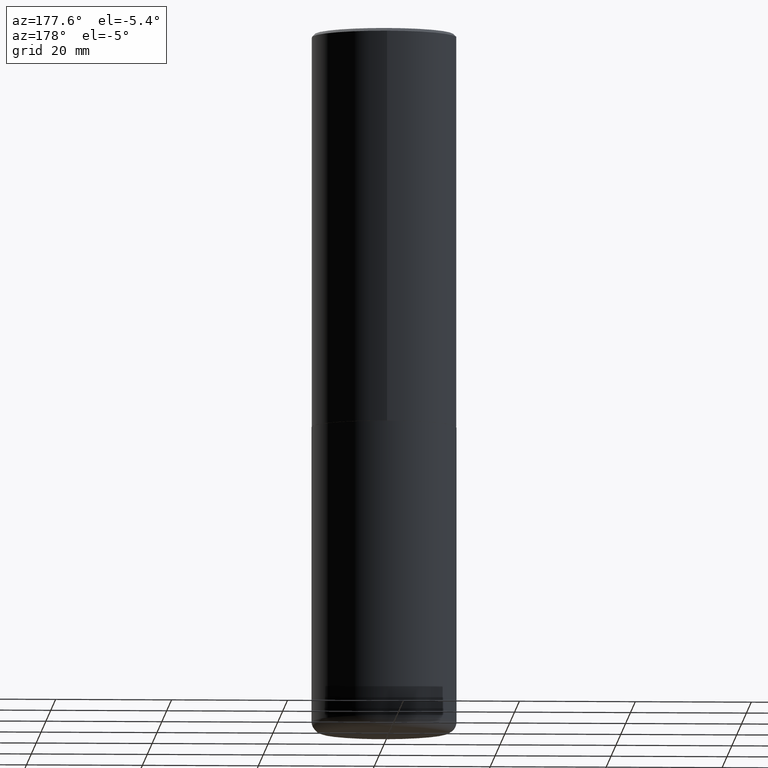
[diagram: clean part render]
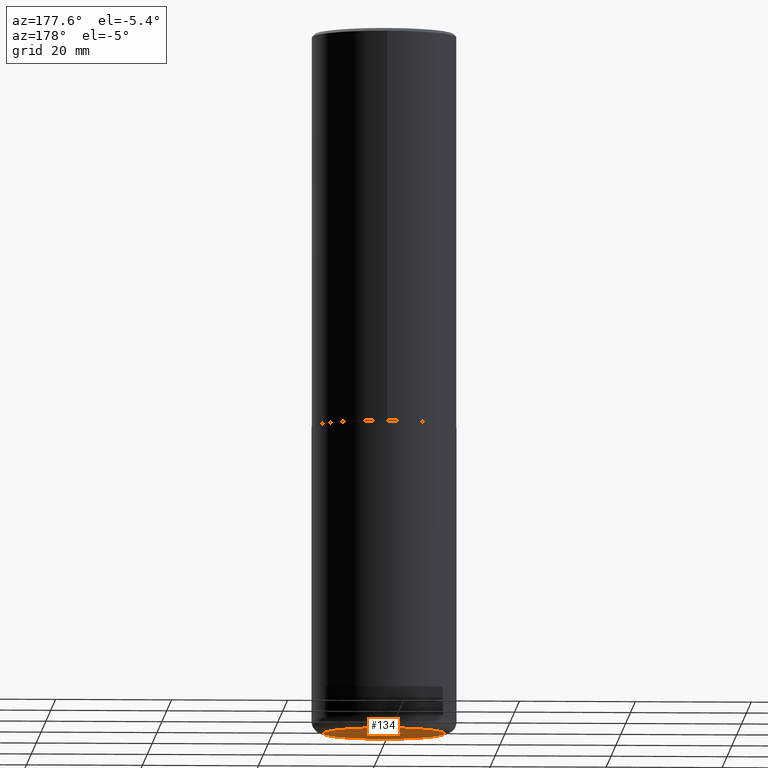
[diagram: same view with one face highlighted and labeled with its STEP entity id]
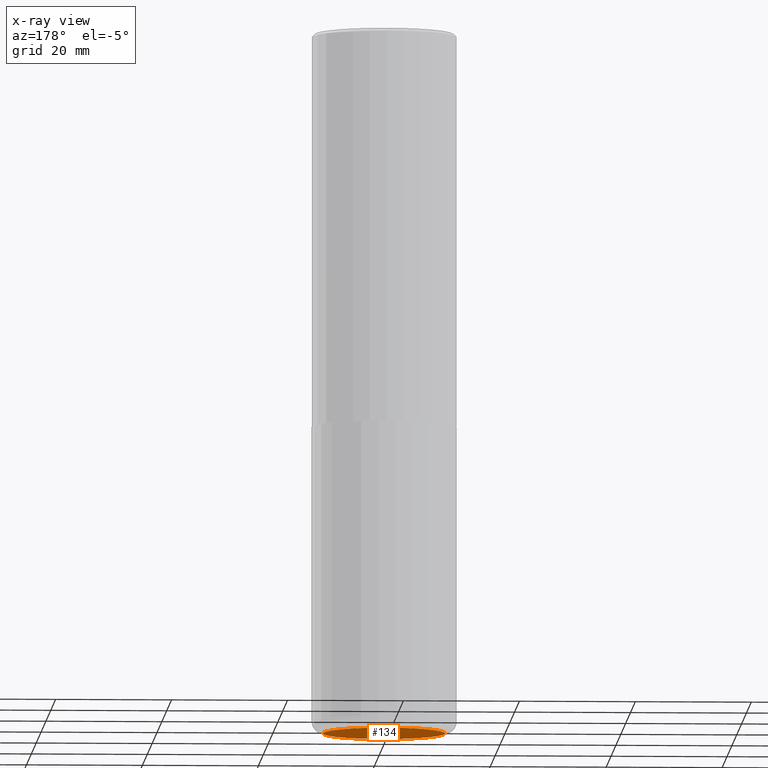
[diagram: x-ray of the same camera — body ghosted, the highlighted face saturated]
A machine part, auxiliary view. The second image highlights one B-rep face of the part: STEP entity #134.
The next image is the same camera in x-ray: the body ghosted, the highlighted face saturated — about 0% of this face is hidden behind the body in this view.
In plain terms, the highlighted planar face has unit normal (0, -0, -1).
Its self-contained STEP definition (entity closure, byte-faithful):
#15 = ORIENTED_EDGE ( 'NONE', *, *, #211, .F. ) ;
#21 = EDGE_CURVE ( 'NONE', #326, #320, #118, .T. ) ;
#58 = CARTESIAN_POINT ( 'NONE',  ( 1.164972429890475522E-28, -1.663271880198097847E-14, -4.763799999999999812 ) ) ;
#63 = AXIS2_PLACEMENT_3D ( 'NONE', #58, #363, #125 ) ;
#70 = AXIS2_PLACEMENT_3D ( 'NONE', #309, #368, #209 ) ;
#88 = PLANE ( 'NONE',  #70 ) ;
#91 = DIRECTION ( 'NONE',  ( -2.445468806185136597E-29, 3.491481338843145583E-15, 1.000000000000000000 ) ) ;
#118 = CIRCLE ( 'NONE', #325, 0.4134499999999999287 ) ;
#125 = DIRECTION ( 'NONE',  ( 1.000000000000000000, -6.982962677686261977E-15, 0.000000000000000000 ) ) ;
#134 = ADVANCED_FACE ( 'NONE', ( #336 ), #88, .T. ) ;
#138 = ORIENTED_EDGE ( 'NONE', *, *, #21, .F. ) ;
#184 = CARTESIAN_POINT ( 'NONE',  ( 1.164972429890475522E-28, -1.663271880198097847E-14, -4.763799999999999812 ) ) ;
#188 = CARTESIAN_POINT ( 'NONE',  ( -0.4134499999999999287, -1.327799150377576435E-14, -4.763799999999999812 ) ) ;
#209 = DIRECTION ( 'NONE',  ( -1.000000000000000000, 6.982962677686265922E-15, -4.876176775795935793E-29 ) ) ;
#211 = EDGE_CURVE ( 'NONE', #320, #326, #351, .T. ) ;
#272 = DIRECTION ( 'NONE',  ( 1.000000000000000000, -6.982962677686261977E-15, 0.000000000000000000 ) ) ;
#309 = CARTESIAN_POINT ( 'NONE',  ( 7.253733539357195705E-29, -2.292802777390881521E-14, -4.763799999999999812 ) ) ;
#320 = VERTEX_POINT ( 'NONE', #414 ) ;
#325 = AXIS2_PLACEMENT_3D ( 'NONE', #184, #91, #272 ) ;
#326 = VERTEX_POINT ( 'NONE', #188 ) ;
#336 = FACE_OUTER_BOUND ( 'NONE', #374, .T. ) ;
#351 = CIRCLE ( 'NONE', #63, 0.4134499999999999287 ) ;
#363 = DIRECTION ( 'NONE',  ( -2.445468806185136597E-29, 3.491481338843145583E-15, 1.000000000000000000 ) ) ;
#368 = DIRECTION ( 'NONE',  ( 2.438088387897960049E-29, -3.491481338843145188E-15, -1.000000000000000000 ) ) ;
#374 = EDGE_LOOP ( 'NONE', ( #15, #138 ) ) ;
#414 = CARTESIAN_POINT ( 'NONE',  ( 0.4134499999999999287, -1.951982472107036283E-14, -4.763799999999999812 ) ) ;